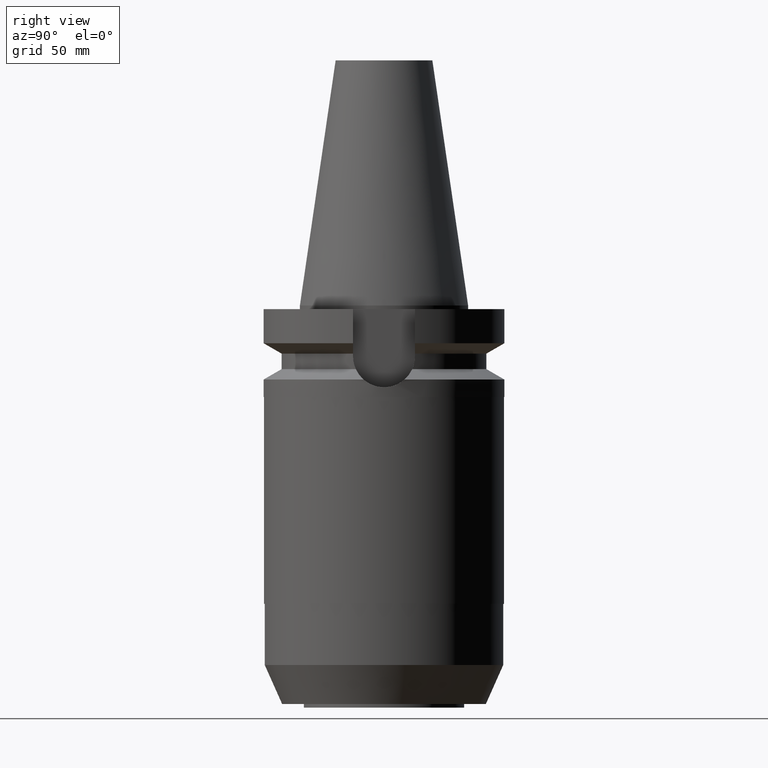
[diagram: clean part render]
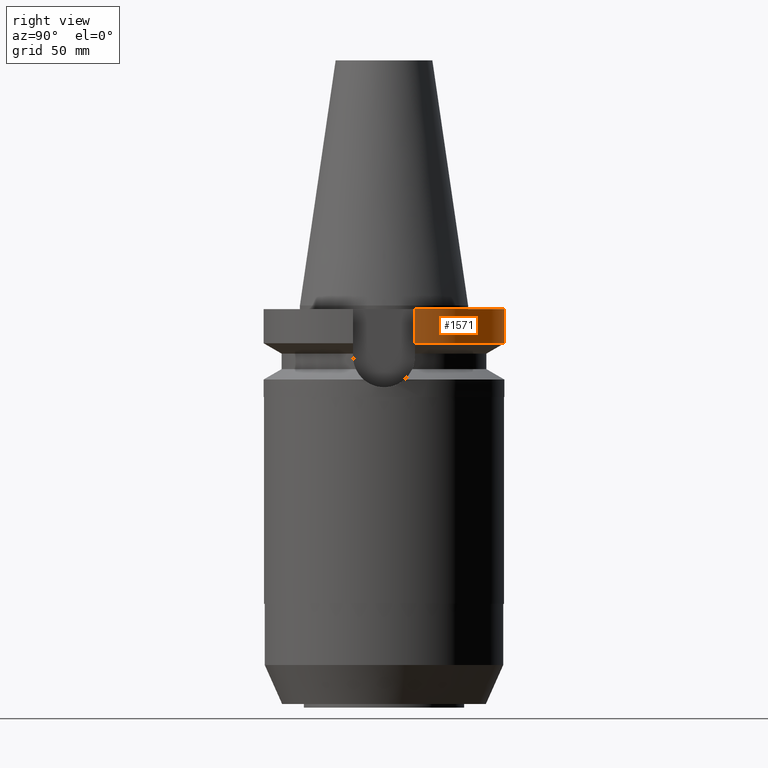
[diagram: same view with one face highlighted and labeled with its STEP entity id]
A machine part, right view. The second image highlights one B-rep face of the part: STEP entity #1571.
In plain terms, the highlighted cylindrical surface (partial cylindrical patch) has radius 50 mm, axis along (0, 0, 1).
Its self-contained STEP definition (entity closure, byte-faithful):
#122=CARTESIAN_POINT('',(0.E0,0.E0,-1.5E0));
#123=DIRECTION('',(0.E0,0.E0,-1.E0));
#124=DIRECTION('',(-9.664114030784E-1,2.57E-1,0.E0));
#125=AXIS2_PLACEMENT_3D('',#122,#123,#124);
#130=CARTESIAN_POINT('',(0.E0,0.E0,-1.5E0));
#131=DIRECTION('',(0.E0,0.E0,-1.E0));
#132=DIRECTION('',(0.E0,1.E0,0.E0));
#133=AXIS2_PLACEMENT_3D('',#130,#131,#132);
#470=DIRECTION('',(7.243431916970E-8,2.723786248153E-7,-1.E0));
#471=VECTOR('',#470,1.416265768401E1);
#472=CARTESIAN_POINT('',(-4.832057015392E1,1.285E1,-1.5E0));
#473=LINE('',#472,#471);
#477=DIRECTION('',(7.245862717098E-8,-2.724700318004E-7,1.E0));
#478=VECTOR('',#477,1.416265767241E1);
#479=CARTESIAN_POINT('',(4.832056912771E1,1.285000385890E1,-1.566265767241E1));
#480=LINE('',#479,#478);
#520=CARTESIAN_POINT('',(0.E0,0.E0,-1.566269223573E1));
#521=DIRECTION('',(0.E0,0.E0,1.E0));
#522=DIRECTION('',(9.664114030784E-1,2.57E-1,0.E0));
#523=AXIS2_PLACEMENT_3D('',#520,#521,#522);
#528=CARTESIAN_POINT('',(0.E0,0.E0,-1.566269223573E1));
#529=DIRECTION('',(0.E0,0.E0,1.E0));
#530=DIRECTION('',(0.E0,1.E0,0.E0));
#531=AXIS2_PLACEMENT_3D('',#528,#529,#530);
#1070=CARTESIAN_POINT('',(-4.832057015392E1,1.285E1,-1.5E0));
#1071=VERTEX_POINT('',#1070);
#1072=CARTESIAN_POINT('',(-1.065814103640E-14,5.E1,-1.5E0));
#1073=CARTESIAN_POINT('',(4.832057015392E1,1.285E1,-1.5E0));
#1074=VERTEX_POINT('',#1072);
#1075=VERTEX_POINT('',#1073);
#1141=CARTESIAN_POINT('',(4.832056912771E1,1.285000385890E1,-1.566265767241E1));
#1142=VERTEX_POINT('',#1141);
#1145=CARTESIAN_POINT('',(-4.832056912806E1,1.285000385761E1,
-1.566265768401E1));
#1146=VERTEX_POINT('',#1145);
#1147=CARTESIAN_POINT('',(0.E0,5.E1,-1.566269223573E1));
#1148=VERTEX_POINT('',#1147);
#1555=CARTESIAN_POINT('',(0.E0,0.E0,-1.8044E2));
#1556=DIRECTION('',(0.E0,0.E0,1.E0));
#1557=DIRECTION('',(0.E0,1.E0,0.E0));
#1558=AXIS2_PLACEMENT_3D('',#1555,#1556,#1557);
#1559=CYLINDRICAL_SURFACE('',#1558,5.E1);
#1561=ORIENTED_EDGE('',*,*,#1560,.T.);
#1563=ORIENTED_EDGE('',*,*,#1562,.F.);
#1565=ORIENTED_EDGE('',*,*,#1564,.F.);
#1566=ORIENTED_EDGE('',*,*,#1544,.T.);
#1567=ORIENTED_EDGE('',*,*,#1326,.F.);
#1568=ORIENTED_EDGE('',*,*,#1324,.F.);
#1569=EDGE_LOOP('',(#1561,#1563,#1565,#1566,#1567,#1568));
#1570=FACE_OUTER_BOUND('',#1569,.F.);
#126=CIRCLE('',#125,5.E1);
#134=CIRCLE('',#133,5.E1);
#524=CIRCLE('',#523,5.E1);
#532=CIRCLE('',#531,5.E1);
#1324=EDGE_CURVE('',#1071,#1074,#126,.T.);
#1326=EDGE_CURVE('',#1074,#1075,#134,.T.);
#1544=EDGE_CURVE('',#1142,#1075,#480,.T.);
#1560=EDGE_CURVE('',#1071,#1146,#473,.T.);
#1562=EDGE_CURVE('',#1148,#1146,#532,.T.);
#1564=EDGE_CURVE('',#1142,#1148,#524,.T.);
#1571=ADVANCED_FACE('',(#1570),#1559,.T.);